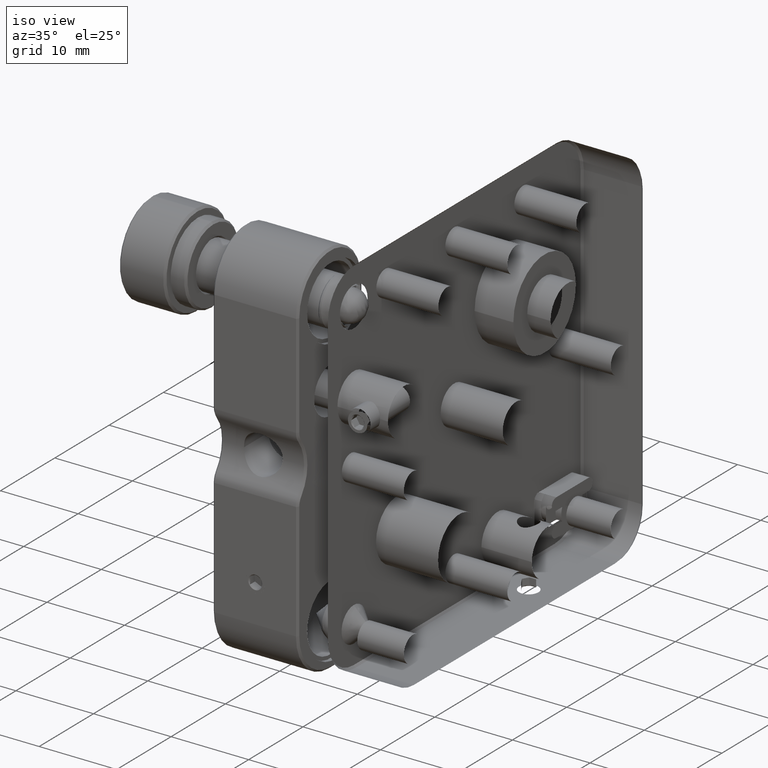
[diagram: clean part render]
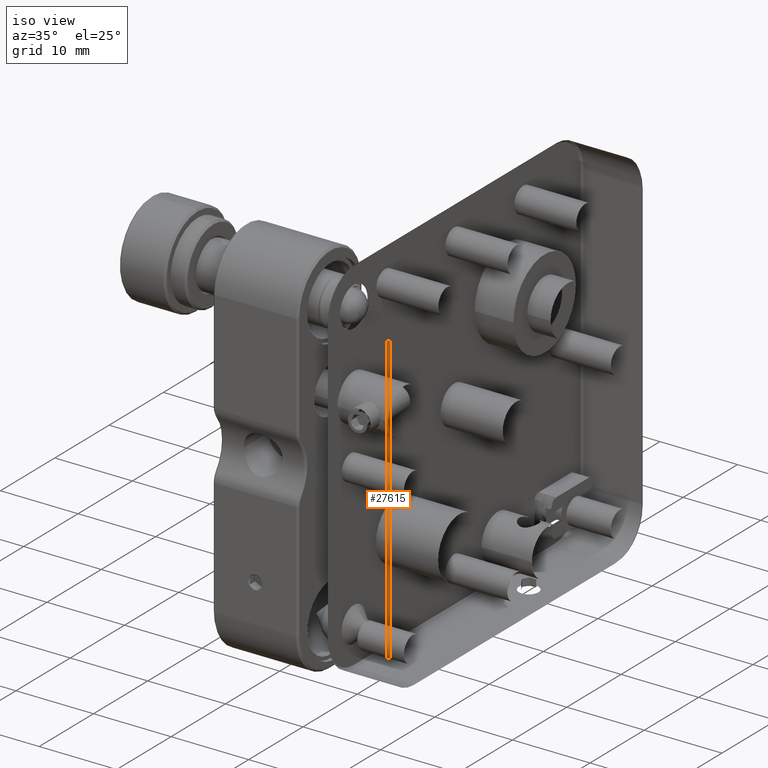
[diagram: same view with one face highlighted and labeled with its STEP entity id]
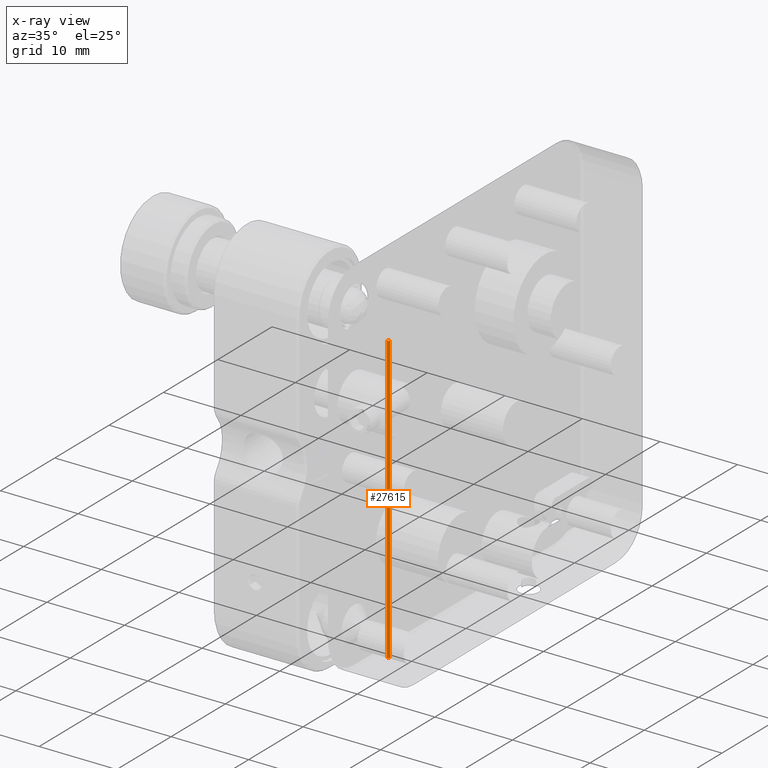
[diagram: x-ray of the same camera — body ghosted, the highlighted face saturated]
A machine part, iso view. The second image highlights one B-rep face of the part: STEP entity #27615.
The next image is the same camera in x-ray: the body ghosted, the highlighted face saturated — about 0% of this face is hidden behind the body in this view.
In plain terms, the highlighted planar face has unit normal (-0.7071, 0.7071, -0).
Its self-contained STEP definition (entity closure, byte-faithful):
#4312 = ORIENTED_EDGE ( 'NONE', *, *, #26852, .T. ) ;
#4877 = DIRECTION ( 'NONE',  ( -0.7071067811865577868, -0.7071067811865373587, 0.000000000000000000 ) ) ;
#5140 = CARTESIAN_POINT ( 'NONE',  ( 16.49606781188433402, -23.24999999998115285, -18.49999999999998934 ) ) ;
#6813 = VERTEX_POINT ( 'NONE', #21245 ) ;
#7192 = DIRECTION ( 'NONE',  ( -1.814437755393150689E-16, 1.814437755393202705E-16, 1.000000000000000000 ) ) ;
#7289 = VECTOR ( 'NONE', #20391, 1000.000000000000000 ) ;
#8674 = DIRECTION ( 'NONE',  ( -0.7071067811865577868, -0.7071067811865373587, 0.000000000000000000 ) ) ;
#9166 = EDGE_CURVE ( 'NONE', #15328, #6813, #18474, .T. ) ;
#10493 = EDGE_CURVE ( 'NONE', #6813, #17569, #17543, .T. ) ;
#10515 = CARTESIAN_POINT ( 'NONE',  ( 16.24606781187205584, -23.50000000000320455, -18.49999999999998934 ) ) ;
#13717 = CARTESIAN_POINT ( 'NONE',  ( 16.24606781186545845, -23.50000000000002132, -18.49999999999998934 ) ) ;
#15232 = VECTOR ( 'NONE', #27156, 1000.000000000000114 ) ;
#15328 = VERTEX_POINT ( 'NONE', #10515 ) ;
#17070 = LINE ( 'NONE', #27154, #7289 ) ;
#17543 = LINE ( 'NONE', #29676, #15232 ) ;
#17569 = VERTEX_POINT ( 'NONE', #29003 ) ;
#18474 = LINE ( 'NONE', #25710, #25288 ) ;
#20391 = DIRECTION ( 'NONE',  ( 6.793094355065668215E-18, -2.261613359270136103E-33, 1.000000000000000000 ) ) ;
#20457 = AXIS2_PLACEMENT_3D ( 'NONE', #26178, #30908, #4877 ) ;
#21245 = CARTESIAN_POINT ( 'NONE',  ( 16.24606781190657401, -23.49999999999216627, 18.50000000000000355 ) ) ;
#21274 = EDGE_CURVE ( 'NONE', #23884, #17569, #17070, .T. ) ;
#21297 = FACE_OUTER_BOUND ( 'NONE', #25273, .T. ) ;
#23884 = VERTEX_POINT ( 'NONE', #5140 ) ;
#23985 = VECTOR ( 'NONE', #8674, 999.9999999999998863 ) ;
#24428 = PLANE ( 'NONE',  #20457 ) ;
#25210 = ORIENTED_EDGE ( 'NONE', *, *, #21274, .F. ) ;
#25273 = EDGE_LOOP ( 'NONE', ( #25210, #4312, #27749, #27148 ) ) ;
#25288 = VECTOR ( 'NONE', #7192, 1000.000000000000000 ) ;
#25396 = LINE ( 'NONE', #13717, #23985 ) ;
#25710 = CARTESIAN_POINT ( 'NONE',  ( 16.24606781186544424, -23.50000000000002132, 23.50000000000000711 ) ) ;
#26178 = CARTESIAN_POINT ( 'NONE',  ( 16.24606781186545135, -23.50000000000001421, 23.50000000000000711 ) ) ;
#26852 = EDGE_CURVE ( 'NONE', #23884, #15328, #25396, .T. ) ;
#27148 = ORIENTED_EDGE ( 'NONE', *, *, #10493, .T. ) ;
#27154 = CARTESIAN_POINT ( 'NONE',  ( 16.49606781186546556, -23.25000000000002487, 4.770422235828094420E-15 ) ) ;
#27156 = DIRECTION ( 'NONE',  ( 0.7071067811865585639, 0.7071067811865364705, 0.000000000000000000 ) ) ;
#27615 = ADVANCED_FACE ( 'NONE', ( #21297 ), #24428, .T. ) ;
#27749 = ORIENTED_EDGE ( 'NONE', *, *, #9166, .T. ) ;
#29003 = CARTESIAN_POINT ( 'NONE',  ( 16.49606781190367144, -23.24999999999114308, 18.50000000000000355 ) ) ;
#29676 = CARTESIAN_POINT ( 'NONE',  ( -498960.2539322038065, -499000.0000000000000, 18.50000000000000355 ) ) ;
#30908 = DIRECTION ( 'NONE',  ( -0.7071067811865373587, 0.7071067811865577868, -2.566002481758827345E-16 ) ) ;